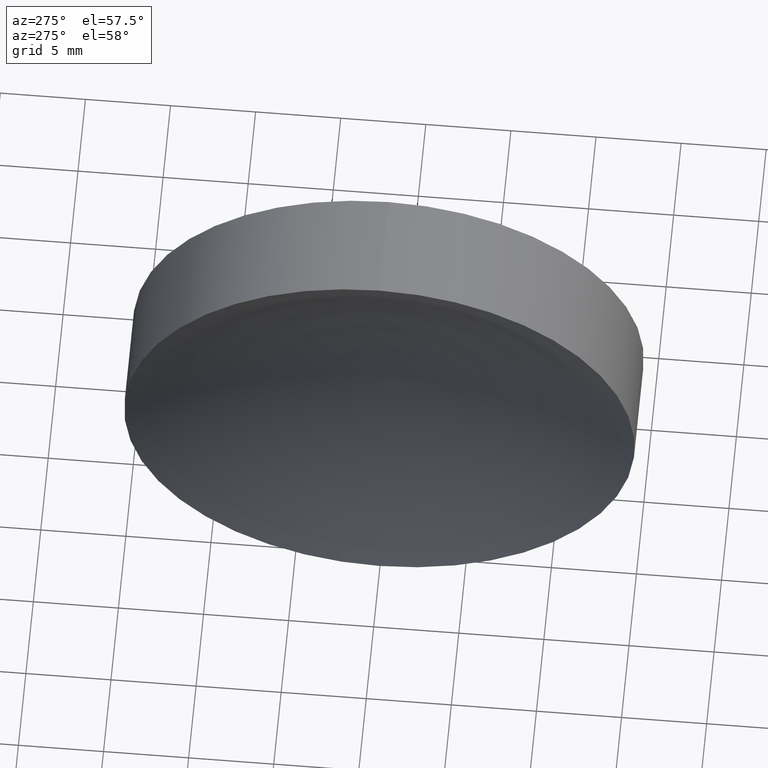
[diagram: clean part render]
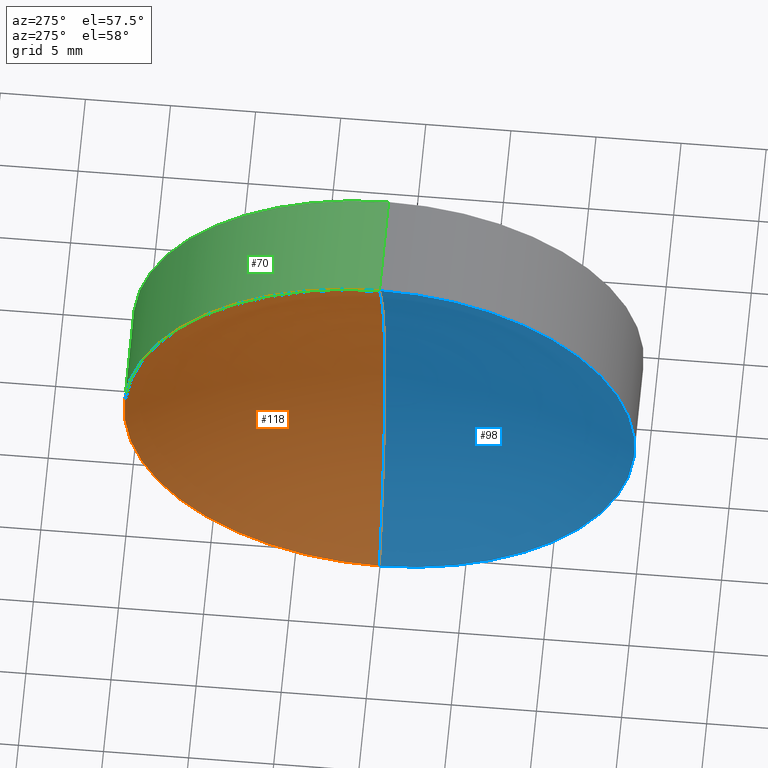
[diagram: same view with three faces highlighted in distinct colors, each labeled with its STEP entity id]
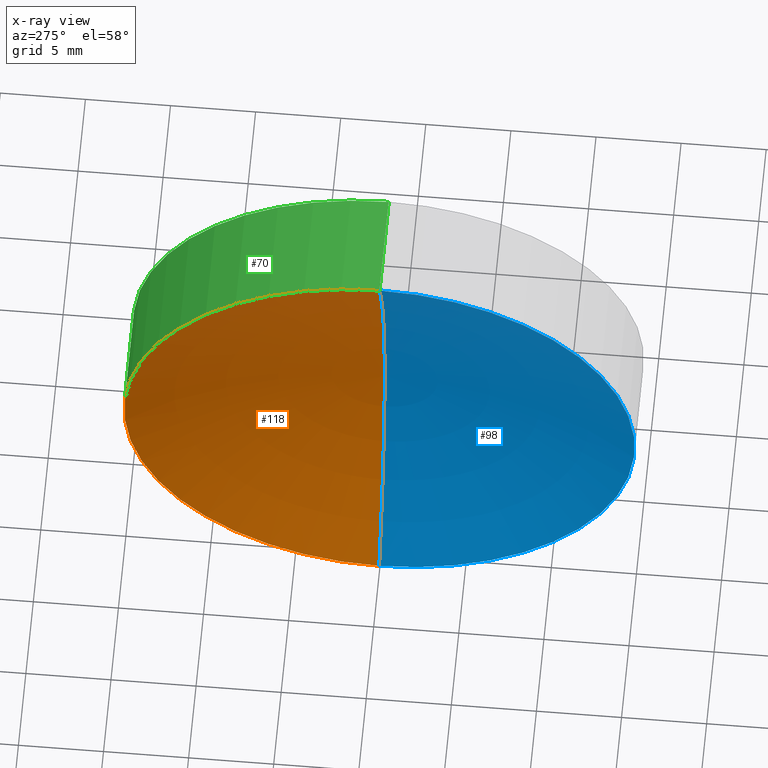
[diagram: x-ray of the same camera — body ghosted, the three highlighted faces saturated]
A machine part, auxiliary view with three faces highlighted in distinct colors.
The next image is the same camera in x-ray (body ghosted, the three faces saturated) — at least one of them is partly hidden behind the body in this view.
Their STEP definitions:

[orange] entity #118 — the highlighted toroidal blend (fillet) surface has major radius 0.0027 mm and minor (blend) radius 32.5 mm.
#14 = CIRCLE ( 'NONE', #116, 32.50000000000000000 ) ;
#20 = AXIS2_PLACEMENT_3D ( 'NONE', #28, #103, #87 ) ;
#21 = EDGE_CURVE ( 'NONE', #55, #166, #14, .T. ) ;
#26 = DIRECTION ( 'NONE',  ( 0.000000000000000000, 0.000000000000000000, -1.000000000000000000 ) ) ;
#28 = CARTESIAN_POINT ( 'NONE',  ( -34.99999988757135583, 0.000000000000000000, 0.000000000000000000 ) ) ;
#31 = CIRCLE ( 'NONE', #132, 32.50000000000000000 ) ;
#46 = EDGE_CURVE ( 'NONE', #200, #166, #31, .T. ) ;
#55 = VERTEX_POINT ( 'NONE', #85 ) ;
#58 = FACE_OUTER_BOUND ( 'NONE', #178, .T. ) ;
#85 = CARTESIAN_POINT ( 'NONE',  ( -6.170000000000001705, 0.000000000000000000, -15.00000000000000355 ) ) ;
#87 = DIRECTION ( 'NONE',  ( 0.000000000000000000, 0.000000000000000000, -1.000000000000000000 ) ) ;
#88 = DIRECTION ( 'NONE',  ( 0.000000000000000000, 1.000000000000000000, -1.224646799147353207E-16 ) ) ;
#89 = ORIENTED_EDGE ( 'NONE', *, *, #201, .F. ) ;
#94 = AXIS2_PLACEMENT_3D ( 'NONE', #144, #173, #183 ) ;
#103 = DIRECTION ( 'NONE',  ( 1.000000000000000000, -0.000000000000000000, -0.000000000000000000 ) ) ;
#116 = AXIS2_PLACEMENT_3D ( 'NONE', #181, #120, #26 ) ;
#117 = CARTESIAN_POINT ( 'NONE',  ( -34.99999988757135583, -3.310594826671961910E-19, -0.002703305825791507688 ) ) ;
#118 = ADVANCED_FACE ( 'NONE', ( #58 ), #137, .F. ) ;
#120 = DIRECTION ( 'NONE',  ( -0.000000000000000000, -1.000000000000000000, -0.000000000000000000 ) ) ;
#132 = AXIS2_PLACEMENT_3D ( 'NONE', #117, #88, #141 ) ;
#137 = TOROIDAL_SURFACE ( 'NONE', #20, -0.002703305825791507688, 32.50000000000000711 ) ;
#141 = DIRECTION ( 'NONE',  ( 0.000000000000000000, 1.224646799147353700E-16, 1.000000000000000000 ) ) ;
#144 = CARTESIAN_POINT ( 'NONE',  ( -6.170000000000000817, 0.000000000000000000, 0.000000000000000000 ) ) ;
#155 = CARTESIAN_POINT ( 'NONE',  ( -2.500000000000000000, 0.000000000000000000, 0.000000000000000000 ) ) ;
#157 = ORIENTED_EDGE ( 'NONE', *, *, #46, .F. ) ;
#166 = VERTEX_POINT ( 'NONE', #155 ) ;
#173 = DIRECTION ( 'NONE',  ( 1.000000000000000000, -0.000000000000000000, -0.000000000000000000 ) ) ;
#178 = EDGE_LOOP ( 'NONE', ( #157, #89, #198 ) ) ;
#181 = CARTESIAN_POINT ( 'NONE',  ( -34.99999988757135583, 0.000000000000000000, 0.002703305825791507688 ) ) ;
#183 = DIRECTION ( 'NONE',  ( 0.000000000000000000, 0.000000000000000000, -1.000000000000000000 ) ) ;
#185 = CARTESIAN_POINT ( 'NONE',  ( -6.170000000000001705, 1.836970198721030378E-15, 15.00000000000000355 ) ) ;
#186 = CIRCLE ( 'NONE', #94, 15.00000000000000000 ) ;
#198 = ORIENTED_EDGE ( 'NONE', *, *, #21, .T. ) ;
#200 = VERTEX_POINT ( 'NONE', #185 ) ;
#201 = EDGE_CURVE ( 'NONE', #55, #200, #186, .T. ) ;

[blue] entity #98 — the highlighted toroidal blend (fillet) surface has major radius 0.0027 mm and minor (blend) radius 32.5 mm.
#5 = ORIENTED_EDGE ( 'NONE', *, *, #21, .F. ) ;
#6 = CIRCLE ( 'NONE', #113, 15.00000000000000000 ) ;
#14 = CIRCLE ( 'NONE', #116, 32.50000000000000000 ) ;
#21 = EDGE_CURVE ( 'NONE', #55, #166, #14, .T. ) ;
#26 = DIRECTION ( 'NONE',  ( 0.000000000000000000, 0.000000000000000000, -1.000000000000000000 ) ) ;
#27 = EDGE_LOOP ( 'NONE', ( #100, #119, #5 ) ) ;
#31 = CIRCLE ( 'NONE', #132, 32.50000000000000000 ) ;
#43 = DIRECTION ( 'NONE',  ( 0.000000000000000000, 0.000000000000000000, -1.000000000000000000 ) ) ;
#46 = EDGE_CURVE ( 'NONE', #200, #166, #31, .T. ) ;
#55 = VERTEX_POINT ( 'NONE', #85 ) ;
#66 = TOROIDAL_SURFACE ( 'NONE', #152, -0.002703305825791507688, 32.50000000000000711 ) ;
#85 = CARTESIAN_POINT ( 'NONE',  ( -6.170000000000001705, 0.000000000000000000, -15.00000000000000355 ) ) ;
#88 = DIRECTION ( 'NONE',  ( 0.000000000000000000, 1.000000000000000000, -1.224646799147353207E-16 ) ) ;
#91 = DIRECTION ( 'NONE',  ( 1.000000000000000000, -0.000000000000000000, -0.000000000000000000 ) ) ;
#98 = ADVANCED_FACE ( 'NONE', ( #197 ), #66, .F. ) ;
#100 = ORIENTED_EDGE ( 'NONE', *, *, #184, .F. ) ;
#106 = CARTESIAN_POINT ( 'NONE',  ( -6.170000000000000817, 0.000000000000000000, 0.000000000000000000 ) ) ;
#113 = AXIS2_PLACEMENT_3D ( 'NONE', #106, #91, #172 ) ;
#116 = AXIS2_PLACEMENT_3D ( 'NONE', #181, #120, #26 ) ;
#117 = CARTESIAN_POINT ( 'NONE',  ( -34.99999988757135583, -3.310594826671961910E-19, -0.002703305825791507688 ) ) ;
#119 = ORIENTED_EDGE ( 'NONE', *, *, #46, .T. ) ;
#120 = DIRECTION ( 'NONE',  ( -0.000000000000000000, -1.000000000000000000, -0.000000000000000000 ) ) ;
#132 = AXIS2_PLACEMENT_3D ( 'NONE', #117, #88, #141 ) ;
#140 = DIRECTION ( 'NONE',  ( 1.000000000000000000, -0.000000000000000000, -0.000000000000000000 ) ) ;
#141 = DIRECTION ( 'NONE',  ( 0.000000000000000000, 1.224646799147353700E-16, 1.000000000000000000 ) ) ;
#152 = AXIS2_PLACEMENT_3D ( 'NONE', #182, #140, #43 ) ;
#155 = CARTESIAN_POINT ( 'NONE',  ( -2.500000000000000000, 0.000000000000000000, 0.000000000000000000 ) ) ;
#166 = VERTEX_POINT ( 'NONE', #155 ) ;
#172 = DIRECTION ( 'NONE',  ( 0.000000000000000000, 0.000000000000000000, -1.000000000000000000 ) ) ;
#181 = CARTESIAN_POINT ( 'NONE',  ( -34.99999988757135583, 0.000000000000000000, 0.002703305825791507688 ) ) ;
#182 = CARTESIAN_POINT ( 'NONE',  ( -34.99999988757135583, 0.000000000000000000, 0.000000000000000000 ) ) ;
#184 = EDGE_CURVE ( 'NONE', #200, #55, #6, .T. ) ;
#185 = CARTESIAN_POINT ( 'NONE',  ( -6.170000000000001705, 1.836970198721030378E-15, 15.00000000000000355 ) ) ;
#197 = FACE_OUTER_BOUND ( 'NONE', #27, .T. ) ;
#200 = VERTEX_POINT ( 'NONE', #185 ) ;

[green] entity #70 — the highlighted cylindrical surface (partial cylindrical patch) has radius 15 mm, axis along (1, -0, -0).
#8 = FACE_OUTER_BOUND ( 'NONE', #102, .T. ) ;
#11 = CARTESIAN_POINT ( 'NONE',  ( 0.000000000000000000, 0.000000000000000000, 0.000000000000000000 ) ) ;
#29 = VERTEX_POINT ( 'NONE', #115 ) ;
#30 = DIRECTION ( 'NONE',  ( 1.000000000000000000, -0.000000000000000000, -0.000000000000000000 ) ) ;
#40 = VERTEX_POINT ( 'NONE', #73 ) ;
#42 = DIRECTION ( 'NONE',  ( 1.000000000000000000, -0.000000000000000000, -0.000000000000000000 ) ) ;
#50 = DIRECTION ( 'NONE',  ( 0.000000000000000000, 0.000000000000000000, -1.000000000000000000 ) ) ;
#55 = VERTEX_POINT ( 'NONE', #85 ) ;
#70 = ADVANCED_FACE ( 'NONE', ( #8 ), #138, .T. ) ;
#71 = ORIENTED_EDGE ( 'NONE', *, *, #201, .T. ) ;
#73 = CARTESIAN_POINT ( 'NONE',  ( -1.208496738073276077E-15, 0.000000000000000000, -15.00000000000000000 ) ) ;
#79 = CARTESIAN_POINT ( 'NONE',  ( 0.000000000000000000, 0.000000000000000000, -15.00000000000000000 ) ) ;
#81 = VECTOR ( 'NONE', #127, 1000.000000000000000 ) ;
#85 = CARTESIAN_POINT ( 'NONE',  ( -6.170000000000001705, 0.000000000000000000, -15.00000000000000355 ) ) ;
#90 = ORIENTED_EDGE ( 'NONE', *, *, #189, .F. ) ;
#94 = AXIS2_PLACEMENT_3D ( 'NONE', #144, #173, #183 ) ;
#101 = DIRECTION ( 'NONE',  ( 0.000000000000000000, 0.000000000000000000, -1.000000000000000000 ) ) ;
#102 = EDGE_LOOP ( 'NONE', ( #71, #164, #90, #107 ) ) ;
#104 = LINE ( 'NONE', #169, #145 ) ;
#107 = ORIENTED_EDGE ( 'NONE', *, *, #194, .F. ) ;
#115 = CARTESIAN_POINT ( 'NONE',  ( -1.208496738073276077E-15, 1.836970198721029589E-15, 15.00000000000000000 ) ) ;
#122 = LINE ( 'NONE', #79, #81 ) ;
#127 = DIRECTION ( 'NONE',  ( 1.000000000000000000, -0.000000000000000000, -0.000000000000000000 ) ) ;
#128 = CARTESIAN_POINT ( 'NONE',  ( -1.208496738073276077E-15, 0.000000000000000000, 0.000000000000000000 ) ) ;
#136 = EDGE_CURVE ( 'NONE', #200, #29, #104, .T. ) ;
#138 = CYLINDRICAL_SURFACE ( 'NONE', #156, 15.00000000000000000 ) ;
#143 = DIRECTION ( 'NONE',  ( 1.000000000000000000, -0.000000000000000000, -0.000000000000000000 ) ) ;
#144 = CARTESIAN_POINT ( 'NONE',  ( -6.170000000000000817, 0.000000000000000000, 0.000000000000000000 ) ) ;
#145 = VECTOR ( 'NONE', #30, 1000.000000000000000 ) ;
#156 = AXIS2_PLACEMENT_3D ( 'NONE', #11, #42, #101 ) ;
#161 = CIRCLE ( 'NONE', #171, 15.00000000000000000 ) ;
#164 = ORIENTED_EDGE ( 'NONE', *, *, #136, .T. ) ;
#169 = CARTESIAN_POINT ( 'NONE',  ( 0.000000000000000000, 1.836970198721029589E-15, 15.00000000000000000 ) ) ;
#171 = AXIS2_PLACEMENT_3D ( 'NONE', #128, #143, #50 ) ;
#173 = DIRECTION ( 'NONE',  ( 1.000000000000000000, -0.000000000000000000, -0.000000000000000000 ) ) ;
#183 = DIRECTION ( 'NONE',  ( 0.000000000000000000, 0.000000000000000000, -1.000000000000000000 ) ) ;
#185 = CARTESIAN_POINT ( 'NONE',  ( -6.170000000000001705, 1.836970198721030378E-15, 15.00000000000000355 ) ) ;
#186 = CIRCLE ( 'NONE', #94, 15.00000000000000000 ) ;
#189 = EDGE_CURVE ( 'NONE', #40, #29, #161, .T. ) ;
#194 = EDGE_CURVE ( 'NONE', #55, #40, #122, .T. ) ;
#200 = VERTEX_POINT ( 'NONE', #185 ) ;
#201 = EDGE_CURVE ( 'NONE', #55, #200, #186, .T. ) ;